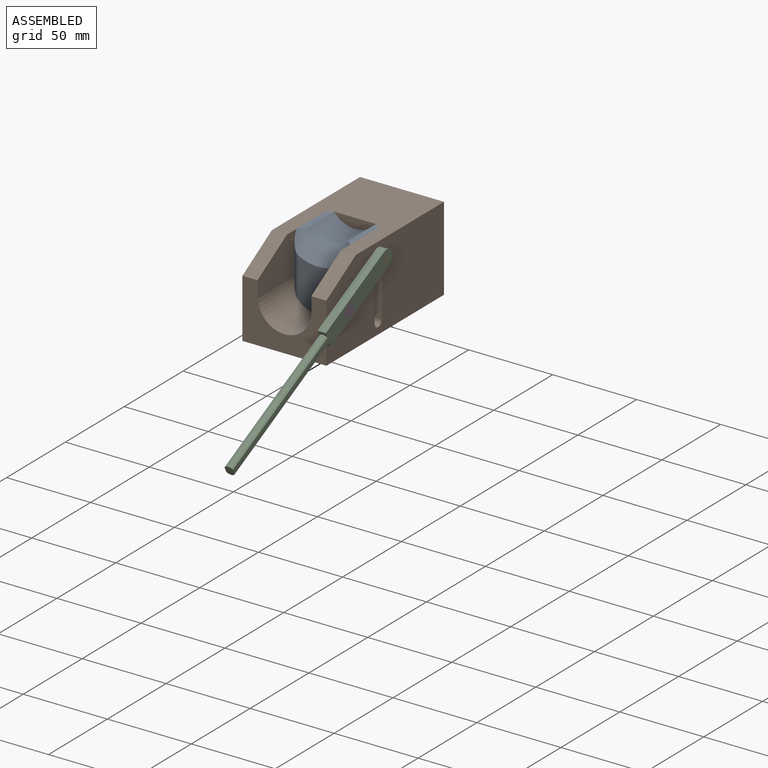
[diagram: assembled view]
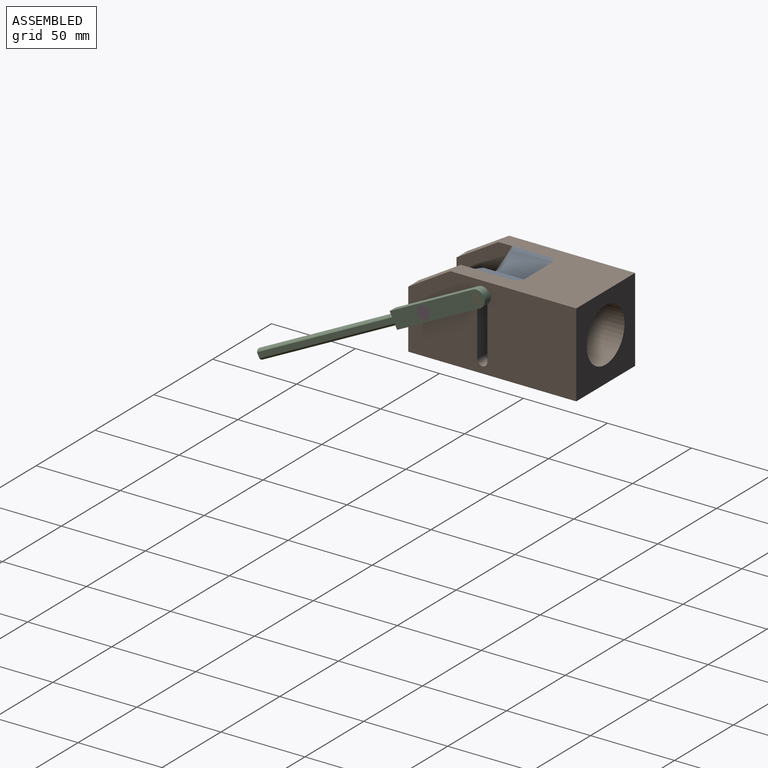
[diagram: assembled view, second angle]
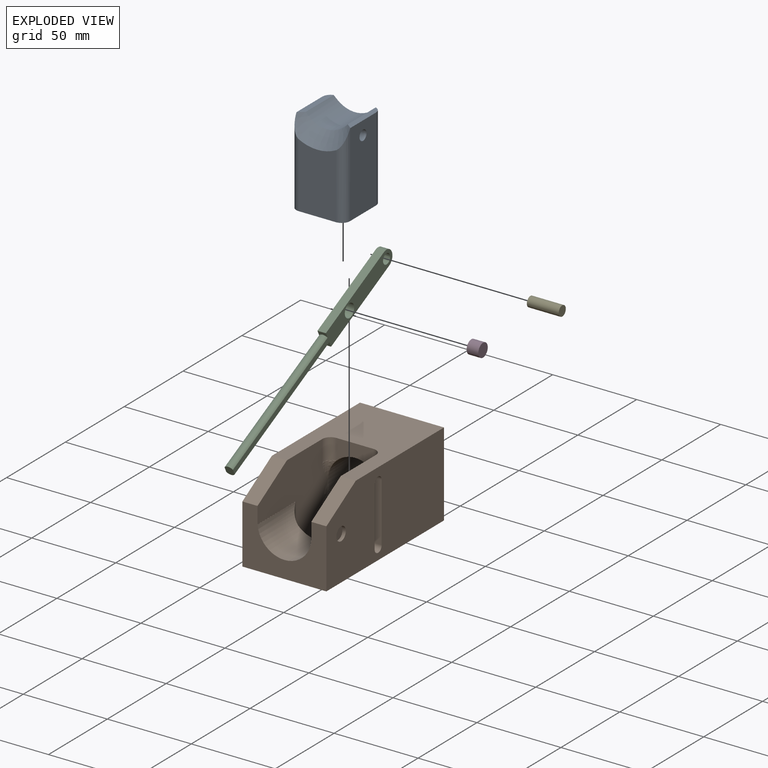
[diagram: exploded view]
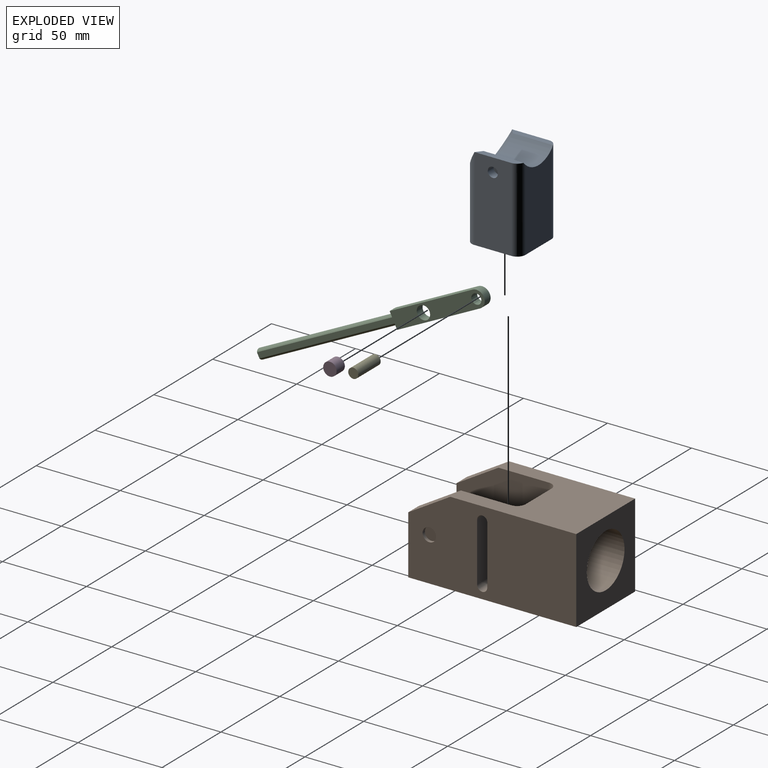
[diagram: exploded view, second angle]
ASSEMBLY  parts=5 mates=5
PART A: 15 faces, bbox 40.7x32x51.5 mm
  f0: plane 26.64x3.51mm, normal (0,0,1), area 84mm2, adj f1,f6,f11,f12
  f1: plane 50x22mm, normal (-1,0,0), area 1100mm2, adj f0,f6,f7,f9,f12
  f2: plane 38.67x22mm, normal (0,-1,0), area 811.1mm2, adj f7,f9,f10,f12
  f3: plane 50x22mm, normal (1,0,0), area 1071.7mm2, adj f4,f7,f8,f10,f12,f13
  f4: cylinder r=5mm len=50mm, axis (0,0,1), area 391.5mm2, adj f3,f5,f7,f8,f11
  f5: plane 48.38x22mm, normal (0,1,0), area 998.1mm2, adj f4,f6,f7,f11
  f6: cylinder r=5mm len=50mm, axis (0,0,1), area 391.5mm2, adj f0,f1,f5,f7,f11
  f7: plane 32x32mm, normal (0,0,-1), area 1002.5mm2, adj f1,f2,f3,f4,f5,f6,f9,f10
  f8: plane 26.64x3.51mm, normal (0,0,1), area 84mm2, adj f3,f4,f11,f12
  f9: cylinder r=5mm len=49.75mm, axis (0,0,1), area 339.9mm2, adj f1,f2,f7,f12
  f10: cylinder r=5mm len=49.75mm, axis (0,0,-1), area 339.9mm2, adj f2,f3,f7,f12
  f11: cylinder r=16mm len=24.98mm, axis (0,-1,0), area 687.4mm2, adj f0,f4,f5,f6,f8,f12
  f12: cone r=16mm half-angle=45deg, axis (0,-1,0), area 378.8mm2, adj f0,f1,f2,f3,f8,f9,f10,f11
  f13: cylinder r=3mm len=6mm, axis (1,0,0), area 94.2mm2, adj f3,f14
  f14: plane 6x6mm, normal (1,0,0), area 28.3mm2, adj f13
PART B: 34 faces, bbox 50x100x50 mm
  f0: cylinder r=16mm len=40mm, axis (0,1,0), area 4021.2mm2, adj f7,f8,f9,f15,f20,f22,f23
  f1: cylinder r=16mm len=32.32mm, axis (0,1,0), area 1377.9mm2, adj f2,f12,f13,f14,f17,f18
  f2: plane 50x35mm, normal (0,-1,0), area 1066.7mm2, adj f1,f4,f5,f6,f10,f11,f12,f13
  f3: plane 75x50mm, normal (0,0,1), area 2640.7mm2, adj f4,f6,f7,f9,f10,f11,f19,f21
  f4: plane 100x50mm, normal (-1,0,0), area 4812.5mm2, adj f2,f3,f5,f7,f33
  f5: plane 100x50mm, normal (0,0,-1), area 3997.5mm2, adj f2,f4,f6,f7,f8,f10,f11,f14
  f6: plane 100x50mm, normal (1,0,0), area 4523.7mm2, adj f2,f3,f5,f7,f25,f27,f28,f29
  f7: plane 50x50mm, normal (0,1,0), area 1695.8mm2, adj f0,f3,f4,f5,f6
  f8: plane 22x14.6mm, normal (0,-1,0), area 254.9mm2, adj f0,f5,f16,f24
  f9: plane 22x12.17mm, normal (0,-1,0), area 201.4mm2, adj f0,f3,f19,f21
  f10: plane 60x50mm, normal (1,0,0), area 1780mm2, adj f2,f3,f5,f13,f15,f16,f17,f19
  f11: plane 60x50mm, normal (-1,0,0), area 1541.5mm2, adj f2,f3,f5,f12,f18,f21,f22,f23
  f12: plane 33x0.05mm, normal (0,0,1), area 1.5mm2, adj f1,f2,f11,f18
  f13: plane 33x0.05mm, normal (0,0,1), area 1.5mm2, adj f1,f2,f10,f17
  f14: plane 22x14.6mm, normal (0,1,0), area 254.9mm2, adj f1,f5,f17,f18
  f15: bspline ~13.36x5.91mm, area 44.1mm2, adj f0,f10,f16
  f16: cylinder r=5mm len=14.6mm, axis (0,0,1), area 114.6mm2, adj f5,f8,f10,f15
  f17: cylinder r=5mm len=25mm, axis (0,0,-1), area 155.3mm2, adj f1,f5,f10,f13,f14
  f18: cylinder r=5mm len=25mm, axis (0,0,1), area 155.3mm2, adj f1,f5,f11,f12,f14
  f19: cylinder r=5mm len=12.17mm, axis (0,0,1), area 95.6mm2, adj f3,f9,f10,f20
  f20: bspline ~13.36x5.91mm, area 44.1mm2, adj f0,f10,f19
  f21: cylinder r=5mm len=12.17mm, axis (0,0,-1), area 95.6mm2, adj f3,f9,f11,f22
  f22: bspline ~13.36x5.91mm, area 44.1mm2, adj f0,f11,f21
  f23: bspline ~13.36x5.91mm, area 44.1mm2, adj f0,f11,f24
  f24: cylinder r=5mm len=14.6mm, axis (0,0,-1), area 114.6mm2, adj f5,f8,f11,f23
  f25: cylinder r=4mm len=8mm, axis (1,0,0), area 50.3mm2, adj f6,f26
  f26: plane 8x8mm, normal (1,0,0), area 50.3mm2, adj f25
  f27: cylinder r=3mm len=9mm, axis (1,0,0), area 85.5mm2, adj f6,f11,f28,f31
  f28: plane 35x9mm, normal (0,1,0), area 315mm2, adj f6,f11,f27,f29
  f29: cylinder r=3mm len=9mm, axis (1,0,0), area 84.8mm2, adj f6,f11,f28,f30
  f30: plane 35x9mm, normal (0,-1,0), area 315mm2, adj f6,f11,f29,f31
  f31: plane 9x0mm, normal (0,0,-1), area 0mm2, adj f6,f11,f27,f30
  f32: plane 25x15mm, normal (0,-0.51,0.86), area 262.4mm2, adj f2,f3,f6,f11
  f33: plane 25x15mm, normal (0,-0.51,0.86), area 262.4mm2, adj f2,f3,f4,f10
PART C: 13 faces, bbox 5x136.2x72.8 mm
  f0: plane 135.59x71.55mm, normal (1,0,0), area 811.6mm2, adj f2,f3,f4,f5,f6,f7,f8,f9
  f1: plane 135.59x71.55mm, normal (-1,0,0), area 811.6mm2, adj f2,f3,f4,f5,f6,f7,f8,f9
  f2: extruded ~6x5mm, area 46.7mm2, adj f0,f1,f7
  f3: plane 49.38x24.75mm, normal (0,-0.45,0.89), area 276.2mm2, adj f0,f1,f8,f10
  f4: plane 5.36x5mm, normal (0,-0.89,-0.45), area 26mm2, adj f0,f1,f9,f11
  f5: plane 49.38x24.75mm, normal (0,0.45,-0.89), area 276.2mm2, adj f0,f1,f8,f12
  f6: cylinder r=4mm len=8mm, axis (-1,0,0), area 125.7mm2, adj f0,f1
  f7: cylinder r=3mm len=6mm, axis (-1,0,0), area 47.5mm2, adj f0,f1,f2
  f8: cylinder r=5mm len=9.47mm, axis (-1,0,0), area 78.5mm2, adj f0,f1,f3,f5
  f9: cylinder r=3mm len=81.06mm, axis (0,-0.89,-0.45), area 532mm2, adj f0,f1,f4,f10
  f10: plane 5x2.99mm, normal (0,-0.89,-0.45), area 12mm2, adj f0,f1,f3,f9
  f11: cylinder r=3mm len=81.06mm, axis (0,-0.89,-0.45), area 532mm2, adj f0,f1,f4,f12
  f12: plane 5x2.99mm, normal (0,-0.89,-0.45), area 12mm2, adj f0,f1,f5,f11
PART D: 3 faces, bbox 7x8x8 mm
  f0: cylinder r=4mm len=8mm, axis (-1,0,0), area 175.9mm2, adj f1,f2
  f1: plane 8x8mm, normal (1,0,0), area 50.3mm2, adj f0
  f2: plane 8x8mm, normal (-1,0,0), area 50.3mm2, adj f0
PART E: 3 faces, bbox 19x6x6 mm
  f0: cylinder r=3mm len=19mm, axis (-1,0,0), area 358.1mm2, adj f1,f2
  f1: plane 6x6mm, normal (1,0,0), area 28.3mm2, adj f0
  f2: plane 6x6mm, normal (-1,0,0), area 28.3mm2, adj f0
PLACE A t=(-68.07,76.38,54.57)mm
PLACE B t=(-68.07,76.38,54.57)mm
PLACE C t=(-68.07,76.38,54.57)mm
PLACE D t=(-68.07,76.38,54.57)mm
PLACE E t=(-68.07,76.38,54.57)mm
MATE slider A.f7 <-> B.f5  axis (0,0,-1) through (-84.07,20.38,28.35)mm
MATE pin_slot C.f6 <-> D.f0  axis (1,0,0) through (-38.07,-11.12,54.57)mm
MATE fastened E.f0 <-> A.f13  axis (-1,0,0) through (-57.07,20.38,70.35)mm
MATE pin_slot C.f7 <-> E.f0  axis (-1,0,0) through (-38.07,20.38,70.35)mm
MATE fastened D.f0 <-> B.f25  axis (-1,0,0) through (-45.07,-11.12,54.57)mm
